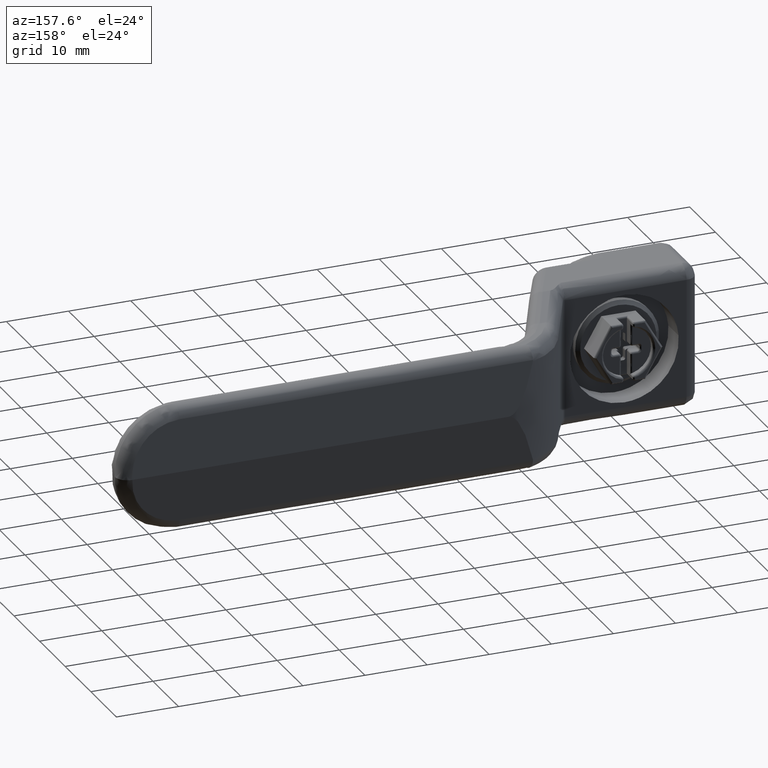
[diagram: clean part render]
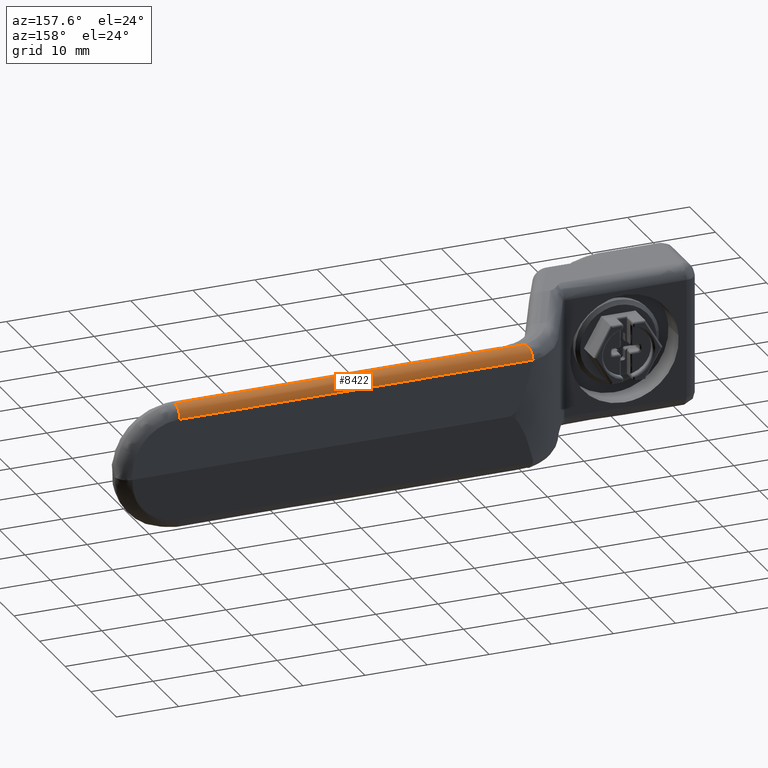
[diagram: same view with one face highlighted and labeled with its STEP entity id]
A machine part, auxiliary view. The second image highlights one B-rep face of the part: STEP entity #8422.
In plain terms, the highlighted face is a freeform B-spline surface patch.
Its self-contained STEP definition (entity closure, byte-faithful):
#8309=CARTESIAN_POINT('',(27.180100538626899,-77.999953704801300,8.199008176525469));
#8310=VERTEX_POINT('',#8309);
#8311=CARTESIAN_POINT('',(25.190026158206951,-77.999953704801300,10.000000738483401));
#8312=VERTEX_POINT('',#8311);
#8313=CARTESIAN_POINT('',(27.180100538626920,-77.999953704801300,8.199008176525471));
#8314=CARTESIAN_POINT('',(27.000001282431068,-77.999953704801285,10.000000738483410));
#8315=CARTESIAN_POINT('',(25.190026158206951,-77.999953704801300,10.000000738483410));
#8323=(BOUNDED_CURVE()B_SPLINE_CURVE(2,(#8313,#8314,#8315),.UNSPECIFIED.,.F.,.U.)CURVE()GEOMETRIC_REPRESENTATION_ITEM()QUASI_UNIFORM_CURVE()RATIONAL_B_SPLINE_CURVE((1.0,0.741452533551889,1.0))REPRESENTATION_ITEM(''));
#8324=EDGE_CURVE('',#8310,#8312,#8323,.T.);
#8360=CARTESIAN_POINT('',(27.186295755050679,-79.420756780553489,8.122097817553122));
#8361=CARTESIAN_POINT('',(27.186295755050679,-19.711507522068271,8.122097817553122));
#8362=CARTESIAN_POINT('',(27.063513227117443,-79.420756780553489,10.129574404251665));
#8363=CARTESIAN_POINT('',(27.063513227117443,-19.711507522068263,10.129574404251665));
#8364=CARTESIAN_POINT('',(25.056755459892223,-79.420756780553489,9.995555528753702));
#8365=CARTESIAN_POINT('',(25.056755459892223,-19.711507522068267,9.995555528753702));
#8373=(BOUNDED_SURFACE()B_SPLINE_SURFACE(1,2,((#8360,#8362,#8364),(#8361,#8363,#8365)),.UNSPECIFIED.,.F.,.F.,.U.)B_SPLINE_SURFACE_WITH_KNOTS((2,2),(3,3),(0.0,59.709249258485222),(0.0,3.326827674731146),.UNSPECIFIED.)GEOMETRIC_REPRESENTATION_ITEM()RATIONAL_B_SPLINE_SURFACE(((1.0,0.703388748904232,0.995082141017463),(1.0,0.703388748904232,0.995082141017463)))REPRESENTATION_ITEM('')SURFACE());
#8374=CARTESIAN_POINT('',(27.180100538626899,-21.167830674714249,8.199008176525460));
#8375=VERTEX_POINT('',#8374);
#8376=CARTESIAN_POINT('',(25.190026158206951,-21.557433436906152,10.000000738483401));
#8377=VERTEX_POINT('',#8376);
#8378=CARTESIAN_POINT('',(27.180100538626899,-21.167830674714249,8.199008176525460));
#8379=CARTESIAN_POINT('',(27.167667956735720,-21.170155190701180,8.323333995437302));
#8380=CARTESIAN_POINT('',(27.143893003126831,-21.174600815801320,8.444455983508858));
#8381=CARTESIAN_POINT('',(27.091988547401250,-21.184335170635961,8.621549689264654));
#8382=CARTESIAN_POINT('',(27.071961760727810,-21.188094621517070,8.679810863575062));
#8383=CARTESIAN_POINT('',(27.026372384151308,-21.196667033051181,8.794768601870320));
#8384=CARTESIAN_POINT('',(27.000652081701329,-21.201509775794509,8.851743220034376));
#8385=CARTESIAN_POINT('',(26.916446645826980,-21.217396568457438,9.017251080709764));
#8386=CARTESIAN_POINT('',(26.850908599190682,-21.229799502827021,9.120936014686443));
#8387=CARTESIAN_POINT('',(26.738915453217299,-21.251113625212799,9.266767704366814));
#8388=CARTESIAN_POINT('',(26.699288755309421,-21.258672916390509,9.313751938113452));
#8389=CARTESIAN_POINT('',(26.615336050405009,-21.274736145677050,9.404389400052656));
#8390=CARTESIAN_POINT('',(26.571214364347089,-21.283201290971711,9.447781741187106));
#8391=CARTESIAN_POINT('',(26.434457831344229,-21.309524972984580,9.570476010868692));
#8392=CARTESIAN_POINT('',(26.336758614962552,-21.328439595118990,9.643137827591652));
#8393=CARTESIAN_POINT('',(26.180533524208119,-21.358922048514241,9.738568788098505));
#8394=CARTESIAN_POINT('',(26.126612637238420,-21.369480615787619,9.768211500212718));
#8395=CARTESIAN_POINT('',(26.016478301164248,-21.391134450959569,9.822290612790239));
#8396=CARTESIAN_POINT('',(25.960591413275100,-21.402165204086131,9.846595103186115));
#8397=CARTESIAN_POINT('',(25.790554698039301,-21.435867339876200,9.911568606262874));
#8398=CARTESIAN_POINT('',(25.674047919105568,-21.459144349173989,9.944361062778892));
#8399=CARTESIAN_POINT('',(25.494532938962681,-21.495344125632041,9.977620306146331));
#8400=CARTESIAN_POINT('',(25.433728281503999,-21.507660505223878,9.986037468540495));
#8401=CARTESIAN_POINT('',(25.342469405275441,-21.526233148804842,9.994416495273367));
#8402=CARTESIAN_POINT('',(25.312004438540040,-21.532447702161299,9.996511225200583));
#8403=CARTESIAN_POINT('',(25.250984004339131,-21.544924787475850,9.999304858781169));
#8404=CARTESIAN_POINT('',(25.220191207746080,-21.551238394007370,10.000000738483410));
#8405=CARTESIAN_POINT('',(25.190026158206951,-21.557433436906152,10.000000738483401));
#8406=B_SPLINE_CURVE_WITH_KNOTS('',3,(#8378,#8379,#8380,#8381,#8382,#8383,#8384,#8385,#8386,#8387,#8388,#8389,#8390,#8391,#8392,#8393,#8394,#8395,#8396,#8397,#8398,#8399,#8400,#8401,#8402,#8403,#8404,#8405),.UNSPECIFIED.,.F.,.U.,(4,2,2,2,2,2,2,2,2,2,2,2,2,4),(0.0,0.125000000000002,0.187500000000002,0.250000000000002,0.375000000000003,0.437500000000002,0.500000000000002,0.624999999999998,0.687499999999997,0.749999999999996,0.874999999999996,0.937499999999997,0.968749999999998,1.0),.UNSPECIFIED.);
#8407=EDGE_CURVE('',#8375,#8377,#8406,.T.);
#8408=ORIENTED_EDGE('',*,*,#8407,.T.);
#8409=CARTESIAN_POINT('',(25.190026158206951,-77.999953704801300,10.000000738483401));
#8410=CARTESIAN_POINT('',(25.190026158206951,-21.557433436906152,10.000000738483401));
#8411=QUASI_UNIFORM_CURVE('',1,(#8409,#8410),.UNSPECIFIED.,.F.,.U.);
#8412=EDGE_CURVE('',#8312,#8377,#8411,.T.);
#8413=ORIENTED_EDGE('',*,*,#8412,.F.);
#8414=ORIENTED_EDGE('',*,*,#8324,.F.);
#8415=CARTESIAN_POINT('',(27.180100538626899,-21.167830674714249,8.199008176525460));
#8416=CARTESIAN_POINT('',(27.180100538626899,-77.999953704801300,8.199008176525469));
#8417=QUASI_UNIFORM_CURVE('',1,(#8415,#8416),.UNSPECIFIED.,.F.,.U.);
#8418=EDGE_CURVE('',#8375,#8310,#8417,.T.);
#8419=ORIENTED_EDGE('',*,*,#8418,.F.);
#8420=EDGE_LOOP('',(#8408,#8413,#8414,#8419));
#8421=FACE_OUTER_BOUND('',#8420,.T.);
#8422=ADVANCED_FACE('',(#8421),#8373,.T.);